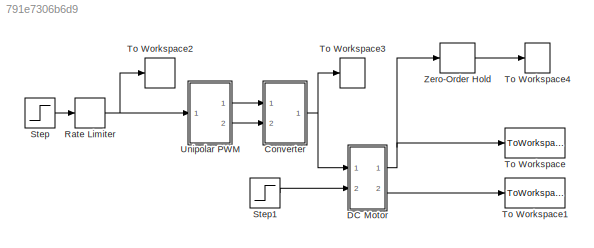
MODEL slx_791e7306b6d9
KIND model
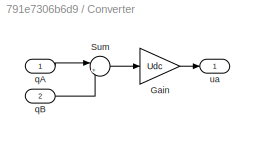
BLOCK [SubSystem] Converter
  FunctionWithSeparateData = off
  MaskHideContents = off
  MinAlgLoopOccurrences = off
  Opaque = off
  Ports = [2, 1]
  PropExecContextOutsideSubsystem = off
  RTWSystemCode = Auto
  RequestExecContextInheritance = off
BLOCK [Gain] Converter/Gain
  Gain = Udc
  OutDataTypeStr = Inherit: Inherit via internal rule
  ParamDataTypeStr = Inherit: Inherit via internal rule
  SaturateOnIntegerOverflow = off
BLOCK [Sum] Converter/Sum
  IconShape = round
  InputSameDT = off
  Inputs = |+-
  OutDataTypeStr = Inherit: Inherit via internal rule
  Ports = [2, 1]
  SaturateOnIntegerOverflow = off
BLOCK [Inport] Converter/qA
  IconDisplay = Port number
BLOCK [Inport] Converter/qB
  IconDisplay = Port number
  Port = 2
BLOCK [Outport] Converter/ua
  IconDisplay = Port number
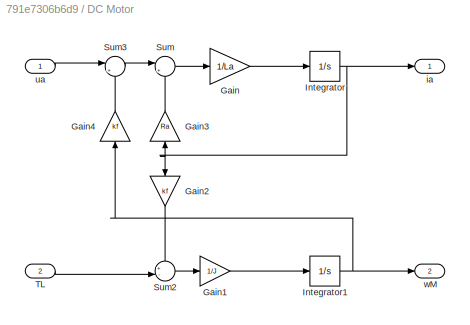
BLOCK [SubSystem] DC Motor
  FunctionWithSeparateData = off
  MaskHideContents = off
  MinAlgLoopOccurrences = off
  Opaque = off
  Ports = [2, 2]
  PropExecContextOutsideSubsystem = off
  RTWSystemCode = Auto
  RequestExecContextInheritance = off
BLOCK [Gain] DC Motor/Gain
  Gain = 1/La
  OutDataTypeStr = Inherit: Inherit via internal rule
  ParamDataTypeStr = Inherit: Inherit via internal rule
  SaturateOnIntegerOverflow = off
BLOCK [Gain] DC Motor/Gain1
  Gain = 1/J
  OutDataTypeStr = Inherit: Inherit via internal rule
  ParamDataTypeStr = Inherit: Inherit via internal rule
  SaturateOnIntegerOverflow = off
BLOCK [Gain] DC Motor/Gain2
  Gain = kf
  OutDataTypeStr = Inherit: Inherit via internal rule
  ParamDataTypeStr = Inherit: Inherit via internal rule
  SaturateOnIntegerOverflow = off
BLOCK [Gain] DC Motor/Gain3
  Gain = Ra
  OutDataTypeStr = Inherit: Inherit via internal rule
  ParamDataTypeStr = Inherit: Inherit via internal rule
  SaturateOnIntegerOverflow = off
BLOCK [Gain] DC Motor/Gain4
  Gain = kf
  OutDataTypeStr = Inherit: Inherit via internal rule
  ParamDataTypeStr = Inherit: Inherit via internal rule
  SaturateOnIntegerOverflow = off
BLOCK [Integrator] DC Motor/Integrator
  Ports = [1, 1]
BLOCK [Integrator] DC Motor/Integrator1
  Ports = [1, 1]
BLOCK [Sum] DC Motor/Sum
  IconShape = round
  InputSameDT = off
  Inputs = |+-
  OutDataTypeStr = Inherit: Inherit via internal rule
  Ports = [2, 1]
  SaturateOnIntegerOverflow = off
BLOCK [Sum] DC Motor/Sum2
  IconShape = round
  InputSameDT = off
  Inputs = +-|
  OutDataTypeStr = Inherit: Inherit via internal rule
  Ports = [2, 1]
  SaturateOnIntegerOverflow = off
BLOCK [Sum] DC Motor/Sum3
  IconShape = round
  InputSameDT = off
  Inputs = |+-
  OutDataTypeStr = Inherit: Inherit via internal rule
  Ports = [2, 1]
  SaturateOnIntegerOverflow = off
BLOCK [Inport] DC Motor/TL
  IconDisplay = Port number
  Port = 2
BLOCK [Outport] DC Motor/ia
  IconDisplay = Port number
BLOCK [Inport] DC Motor/ua
  IconDisplay = Port number
BLOCK [Outport] DC Motor/wM
  IconDisplay = Port number
  Port = 2
BLOCK [RateLimiter] Rate Limiter
  FallingSlewLimit = -120/0.1
  RisingSlewLimit = 120/0.1
BLOCK [Step] Step
  After = 120
  SampleTime = 0
  Time = 0.1
BLOCK [Step] Step1
  After = 7
  SampleTime = 0
  Time = 0.3
BLOCK [ToWorkspace] To Workspace
  MaxDataPoints = inf
  Ports = [1]
  SampleTime = -1
  SaveFormat = Timeseries
  VariableName = ia
BLOCK [ToWorkspace] To Workspace1
  MaxDataPoints = inf
  Ports = [1]
  SampleTime = -1
  SaveFormat = Timeseries
  VariableName = wM
BLOCK [ToWorkspace] To Workspace2
  MaxDataPoints = inf
  Ports = [1]
  SampleTime = -1
  SaveFormat = Timeseries
  VariableName = uaref
BLOCK [ToWorkspace] To Workspace3
  MaxDataPoints = inf
  Ports = [1]
  SampleTime = -1
  SaveFormat = Timeseries
  VariableName = ua
BLOCK [ToWorkspace] To Workspace4
  MaxDataPoints = inf
  Ports = [1]
  SampleTime = -1
  SaveFormat = Timeseries
  VariableName = ia_k
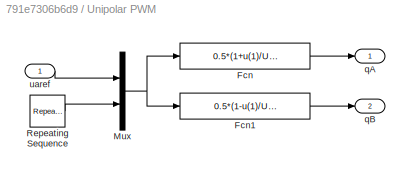
BLOCK [SubSystem] Unipolar PWM
  FunctionWithSeparateData = off
  MaskHideContents = off
  MinAlgLoopOccurrences = off
  Opaque = off
  Ports = [1, 2]
  PropExecContextOutsideSubsystem = off
  RTWSystemCode = Auto
  RequestExecContextInheritance = off
BLOCK [Fcn] Unipolar PWM/Fcn
  Expr = 0.5*(1+u(1)/Udc)>u(2)
BLOCK [Fcn] Unipolar PWM/Fcn1
  Expr = 0.5*(1-u(1)/Udc)>u(2)
BLOCK [Mux] Unipolar PWM/Mux
  DisplayOption = bar
  Inputs = 2
  Ports = [2, 1]
BLOCK [Reference] Unipolar PWM/Repeating Sequence  REF=simulink/Sources/Repeating
Sequence
  Ports = [0, 1]
  SourceBlock = simulink/Sources/Repeating\nSequence
  SourceType = Repeating table
  rep_seq_t = Tsw*[0 0.5 1]
  rep_seq_y = [1 0 1]
BLOCK [Outport] Unipolar PWM/qA
  IconDisplay = Port number
BLOCK [Outport] Unipolar PWM/qB
  IconDisplay = Port number
  Port = 2
BLOCK [Inport] Unipolar PWM/uaref
  IconDisplay = Port number
BLOCK [ZeroOrderHold] Zero-Order Hold
  SampleTime = (200e-6)/2
LINE Converter/Gain:1 -> Converter/ua:1
LINE Converter/Sum:1 -> Converter/Gain:1
LINE Converter/qA:1 -> Converter/Sum:1
LINE Converter/qB:1 -> Converter/Sum:2
NET Converter:1 -> DC Motor:1, To Workspace3:1
LINE DC Motor/Gain1:1 -> DC Motor/Integrator1:1
LINE DC Motor/Gain2:1 -> DC Motor/Sum2:1
LINE DC Motor/Gain3:1 -> DC Motor/Sum:2
LINE DC Motor/Gain4:1 -> DC Motor/Sum3:2
LINE DC Motor/Gain:1 -> DC Motor/Integrator:1
NET DC Motor/Integrator1:1 -> DC Motor/Gain4:1, DC Motor/wM:1
NET DC Motor/Integrator:1 -> DC Motor/Gain2:1, DC Motor/Gain3:1, DC Motor/ia:1
LINE DC Motor/Sum2:1 -> DC Motor/Gain1:1
LINE DC Motor/Sum3:1 -> DC Motor/Sum:1
LINE DC Motor/Sum:1 -> DC Motor/Gain:1
LINE DC Motor/TL:1 -> DC Motor/Sum2:2
LINE DC Motor/ua:1 -> DC Motor/Sum3:1
NET DC Motor:1 -> To Workspace:1, Zero-Order Hold:1
LINE DC Motor:2 -> To Workspace1:1
NET Rate Limiter:1 -> To Workspace2:1, Unipolar PWM:1
LINE Step1:1 -> DC Motor:2
LINE Step:1 -> Rate Limiter:1
LINE Unipolar PWM/Fcn1:1 -> Unipolar PWM/qB:1
LINE Unipolar PWM/Fcn:1 -> Unipolar PWM/qA:1
NET Unipolar PWM/Mux:1 -> Unipolar PWM/Fcn1:1, Unipolar PWM/Fcn:1
LINE Unipolar PWM/Repeating Sequence:1 -> Unipolar PWM/Mux:2
LINE Unipolar PWM/uaref:1 -> Unipolar PWM/Mux:1
LINE Unipolar PWM:1 -> Converter:1
LINE Unipolar PWM:2 -> Converter:2
LINE Zero-Order Hold:1 -> To Workspace4:1
note: NET lines group one-source signal fan-out (src -> all destinations, sorted); 1:1 wires keep LINE
